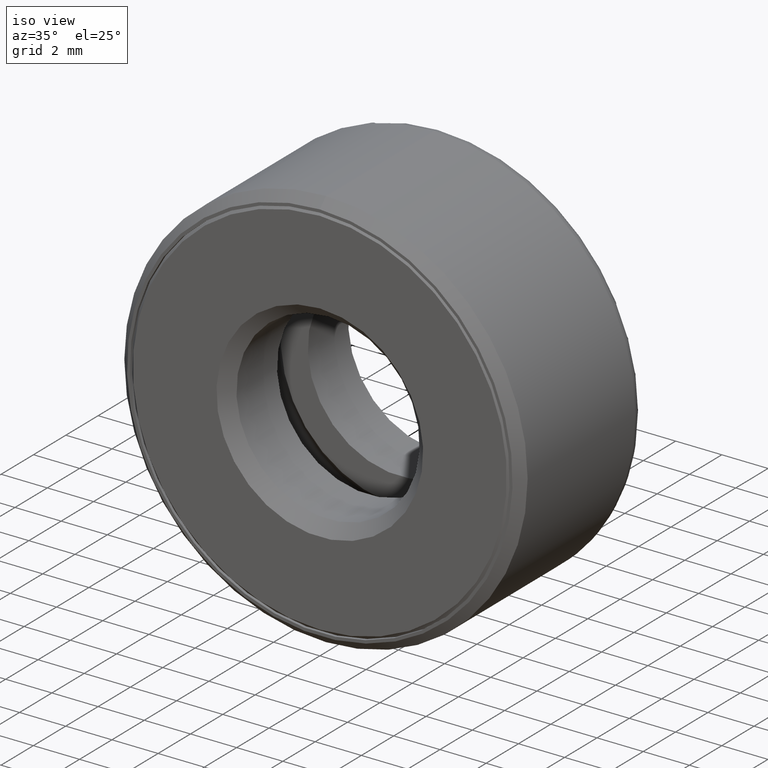
[diagram: clean part render]
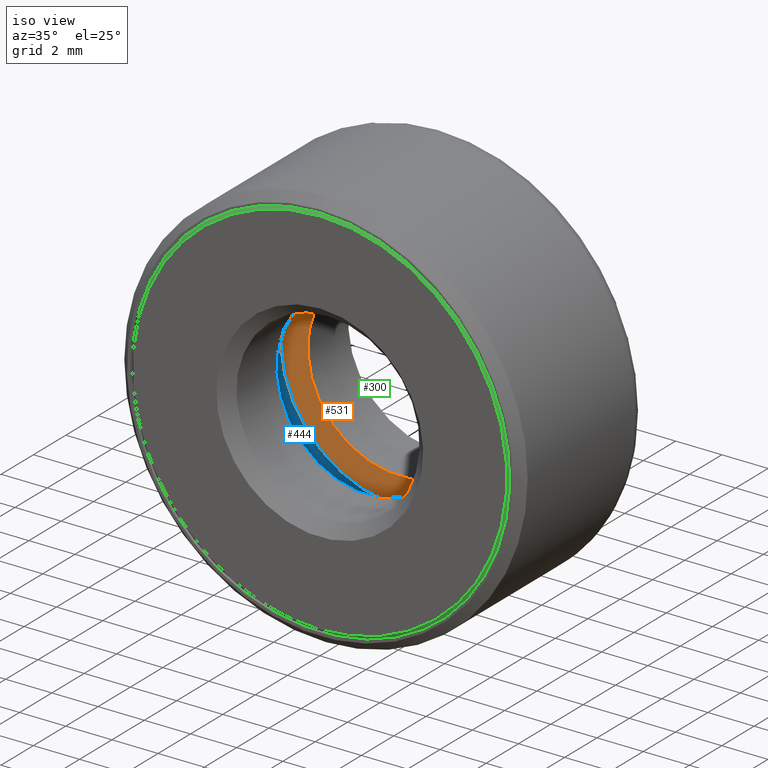
[diagram: same view with three faces highlighted in distinct colors, each labeled with its STEP entity id]
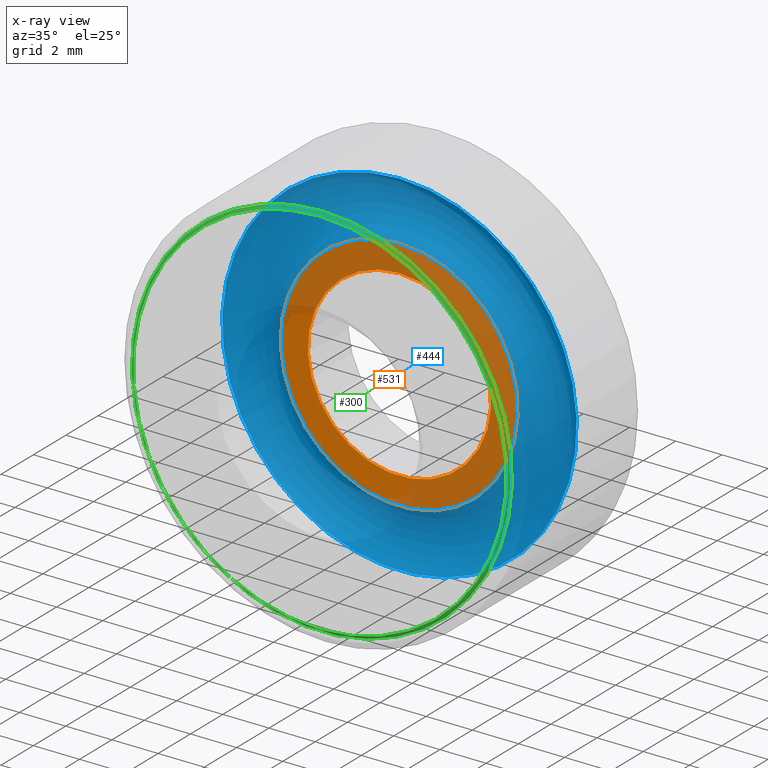
[diagram: x-ray of the same camera — body ghosted, the three highlighted faces saturated]
A machine part, iso view with three faces highlighted in distinct colors.
The next image is the same camera in x-ray (body ghosted, the three faces saturated) — at least one of them is partly hidden behind the body in this view.
Their STEP definitions:

[orange] entity #531 — the highlighted planar face has unit normal (0, -1, 0).
#32 = CIRCLE ( 'NONE', #497, 0.1562500000000000800 ) ;
#40 = AXIS2_PLACEMENT_3D ( 'NONE', #299, #254, #194 ) ;
#88 = DIRECTION ( 'NONE',  ( 0.0000000000000000000, 0.0000000000000000000, 1.000000000000000000 ) ) ;
#107 = DIRECTION ( 'NONE',  ( -0.0000000000000000000, 1.000000000000000000, -0.0000000000000000000 ) ) ;
#121 = EDGE_CURVE ( 'NONE', #576, #576, #32, .T. ) ;
#159 = DIRECTION ( 'NONE',  ( 0.0000000000000000000, 0.0000000000000000000, 1.000000000000000000 ) ) ;
#160 = CARTESIAN_POINT ( 'NONE',  ( 0.0000000000000000000, 0.1937500000000000100, 0.2022499999999997900 ) ) ;
#194 = DIRECTION ( 'NONE',  ( 0.0000000000000000000, -0.0000000000000000000, -1.000000000000000000 ) ) ;
#200 = FACE_BOUND ( 'NONE', #604, .T. ) ;
#241 = ORIENTED_EDGE ( 'NONE', *, *, #121, .T. ) ;
#251 = PLANE ( 'NONE',  #40 ) ;
#254 = DIRECTION ( 'NONE',  ( 0.0000000000000000000, -1.000000000000000000, 0.0000000000000000000 ) ) ;
#267 = ORIENTED_EDGE ( 'NONE', *, *, #399, .F. ) ;
#275 = CARTESIAN_POINT ( 'NONE',  ( 0.0000000000000000000, 0.1937500000000000100, 0.0000000000000000000 ) ) ;
#298 = VERTEX_POINT ( 'NONE', #160 ) ;
#299 = CARTESIAN_POINT ( 'NONE',  ( 0.0000000000000000000, 0.1937500000000000100, 0.0000000000000000000 ) ) ;
#321 = EDGE_LOOP ( 'NONE', ( #267 ) ) ;
#353 = CARTESIAN_POINT ( 'NONE',  ( 0.0000000000000000000, 0.1937500000000000100, 0.1562500000000000800 ) ) ;
#363 = CIRCLE ( 'NONE', #403, 0.2022499999999997900 ) ;
#373 = DIRECTION ( 'NONE',  ( -0.0000000000000000000, 1.000000000000000000, -0.0000000000000000000 ) ) ;
#399 = EDGE_CURVE ( 'NONE', #298, #298, #363, .T. ) ;
#403 = AXIS2_PLACEMENT_3D ( 'NONE', #528, #107, #159 ) ;
#497 = AXIS2_PLACEMENT_3D ( 'NONE', #275, #373, #88 ) ;
#528 = CARTESIAN_POINT ( 'NONE',  ( 0.0000000000000000000, 0.1937500000000000100, 0.0000000000000000000 ) ) ;
#531 = ADVANCED_FACE ( 'NONE', ( #200, #599 ), #251, .T. ) ;
#576 = VERTEX_POINT ( 'NONE', #353 ) ;
#599 = FACE_OUTER_BOUND ( 'NONE', #321, .T. ) ;
#604 = EDGE_LOOP ( 'NONE', ( #241 ) ) ;

[blue] entity #444 — the highlighted toroidal blend (fillet) surface has major radius 6.4071 mm and minor (blend) radius 1.5875 mm.
#5 = TOROIDAL_SURFACE ( 'NONE', #60, 0.2522499999999998100, 0.06250000000000000000 ) ;
#60 = AXIS2_PLACEMENT_3D ( 'NONE', #108, #346, #202 ) ;
#66 = EDGE_LOOP ( 'NONE', ( #209 ) ) ;
#107 = DIRECTION ( 'NONE',  ( -0.0000000000000000000, 1.000000000000000000, -0.0000000000000000000 ) ) ;
#108 = CARTESIAN_POINT ( 'NONE',  ( 0.0000000000000000000, 0.1562500000000000300, 0.0000000000000000000 ) ) ;
#120 = CARTESIAN_POINT ( 'NONE',  ( 0.0000000000000000000, 0.1937500000000000100, 0.3022499999999998500 ) ) ;
#159 = DIRECTION ( 'NONE',  ( 0.0000000000000000000, 0.0000000000000000000, 1.000000000000000000 ) ) ;
#160 = CARTESIAN_POINT ( 'NONE',  ( 0.0000000000000000000, 0.1937500000000000100, 0.2022499999999997900 ) ) ;
#193 = AXIS2_PLACEMENT_3D ( 'NONE', #244, #522, #333 ) ;
#202 = DIRECTION ( 'NONE',  ( 0.0000000000000000000, 0.0000000000000000000, 1.000000000000000000 ) ) ;
#206 = EDGE_LOOP ( 'NONE', ( #485 ) ) ;
#209 = ORIENTED_EDGE ( 'NONE', *, *, #239, .F. ) ;
#239 = EDGE_CURVE ( 'NONE', #491, #491, #350, .T. ) ;
#244 = CARTESIAN_POINT ( 'NONE',  ( 0.0000000000000000000, 0.1937500000000000100, 0.0000000000000000000 ) ) ;
#298 = VERTEX_POINT ( 'NONE', #160 ) ;
#306 = FACE_OUTER_BOUND ( 'NONE', #206, .T. ) ;
#333 = DIRECTION ( 'NONE',  ( 0.0000000000000000000, 0.0000000000000000000, 1.000000000000000000 ) ) ;
#346 = DIRECTION ( 'NONE',  ( -0.0000000000000000000, 1.000000000000000000, -0.0000000000000000000 ) ) ;
#350 = CIRCLE ( 'NONE', #193, 0.3022499999999998500 ) ;
#363 = CIRCLE ( 'NONE', #403, 0.2022499999999997900 ) ;
#399 = EDGE_CURVE ( 'NONE', #298, #298, #363, .T. ) ;
#403 = AXIS2_PLACEMENT_3D ( 'NONE', #528, #107, #159 ) ;
#444 = ADVANCED_FACE ( 'NONE', ( #306, #462 ), #5, .F. ) ;
#462 = FACE_OUTER_BOUND ( 'NONE', #66, .T. ) ;
#485 = ORIENTED_EDGE ( 'NONE', *, *, #399, .T. ) ;
#491 = VERTEX_POINT ( 'NONE', #120 ) ;
#522 = DIRECTION ( 'NONE',  ( -0.0000000000000000000, 1.000000000000000000, -0.0000000000000000000 ) ) ;
#528 = CARTESIAN_POINT ( 'NONE',  ( 0.0000000000000000000, 0.1937500000000000100, 0.0000000000000000000 ) ) ;

[green] entity #300 — the highlighted conical surface has half-angle 45 deg.
#6 = CARTESIAN_POINT ( 'NONE',  ( 0.0000000000000000000, -6.402768735150618500E-018, 0.0000000000000000000 ) ) ;
#19 = EDGE_CURVE ( 'NONE', #37, #37, #195, .T. ) ;
#37 = VERTEX_POINT ( 'NONE', #261 ) ;
#55 = DIRECTION ( 'NONE',  ( -0.0000000000000000000, 1.000000000000000000, -0.0000000000000000000 ) ) ;
#71 = EDGE_CURVE ( 'NONE', #139, #139, #258, .T. ) ;
#72 = CARTESIAN_POINT ( 'NONE',  ( 0.0000000000000000000, 0.005000000000000053000, 0.3237499999999999300 ) ) ;
#86 = CARTESIAN_POINT ( 'NONE',  ( 0.0000000000000000000, 0.005000000000000053000, 0.0000000000000000000 ) ) ;
#139 = VERTEX_POINT ( 'NONE', #72 ) ;
#147 = AXIS2_PLACEMENT_3D ( 'NONE', #6, #55, #380 ) ;
#153 = EDGE_LOOP ( 'NONE', ( #390 ) ) ;
#175 = CONICAL_SURFACE ( 'NONE', #147, 0.3187499999999999200, 0.7853981633974438400 ) ;
#178 = DIRECTION ( 'NONE',  ( 0.0000000000000000000, 0.0000000000000000000, 1.000000000000000000 ) ) ;
#179 = DIRECTION ( 'NONE',  ( -0.0000000000000000000, 1.000000000000000000, -0.0000000000000000000 ) ) ;
#183 = DIRECTION ( 'NONE',  ( -0.0000000000000000000, 1.000000000000000000, -0.0000000000000000000 ) ) ;
#195 = CIRCLE ( 'NONE', #379, 0.3187499999999999200 ) ;
#258 = CIRCLE ( 'NONE', #540, 0.3237499999999999300 ) ;
#261 = CARTESIAN_POINT ( 'NONE',  ( 0.0000000000000000000, -6.402768735150618500E-018, 0.3187499999999999200 ) ) ;
#300 = ADVANCED_FACE ( 'NONE', ( #324, #438 ), #175, .T. ) ;
#324 = FACE_OUTER_BOUND ( 'NONE', #548, .T. ) ;
#360 = ORIENTED_EDGE ( 'NONE', *, *, #71, .F. ) ;
#379 = AXIS2_PLACEMENT_3D ( 'NONE', #590, #179, #178 ) ;
#380 = DIRECTION ( 'NONE',  ( 0.0000000000000000000, 0.0000000000000000000, 1.000000000000000000 ) ) ;
#390 = ORIENTED_EDGE ( 'NONE', *, *, #19, .T. ) ;
#438 = FACE_BOUND ( 'NONE', #153, .T. ) ;
#512 = DIRECTION ( 'NONE',  ( 0.0000000000000000000, 0.0000000000000000000, 1.000000000000000000 ) ) ;
#540 = AXIS2_PLACEMENT_3D ( 'NONE', #86, #183, #512 ) ;
#548 = EDGE_LOOP ( 'NONE', ( #360 ) ) ;
#590 = CARTESIAN_POINT ( 'NONE',  ( 0.0000000000000000000, -6.402768735150618500E-018, 0.0000000000000000000 ) ) ;